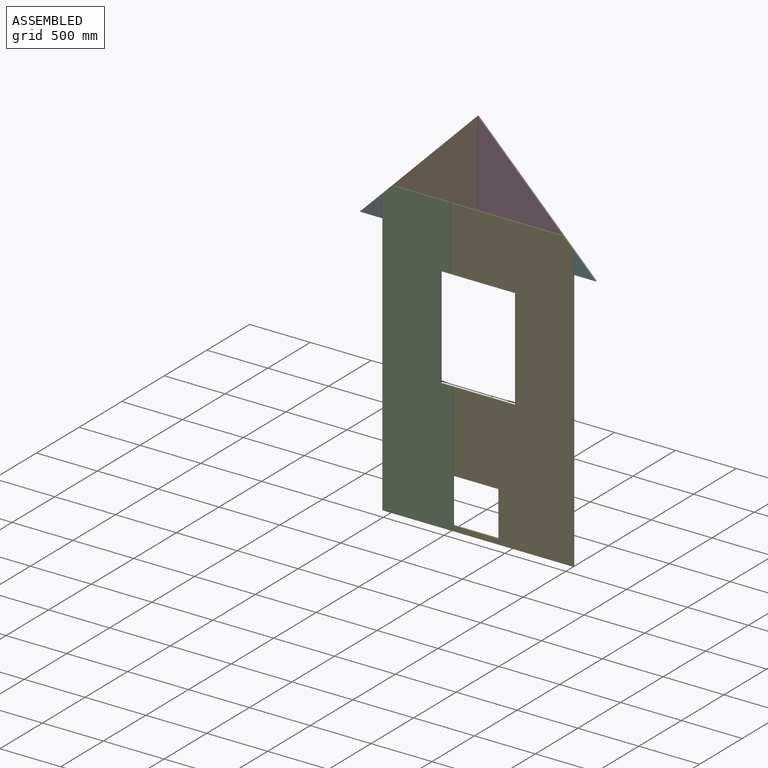
[diagram: assembled view]
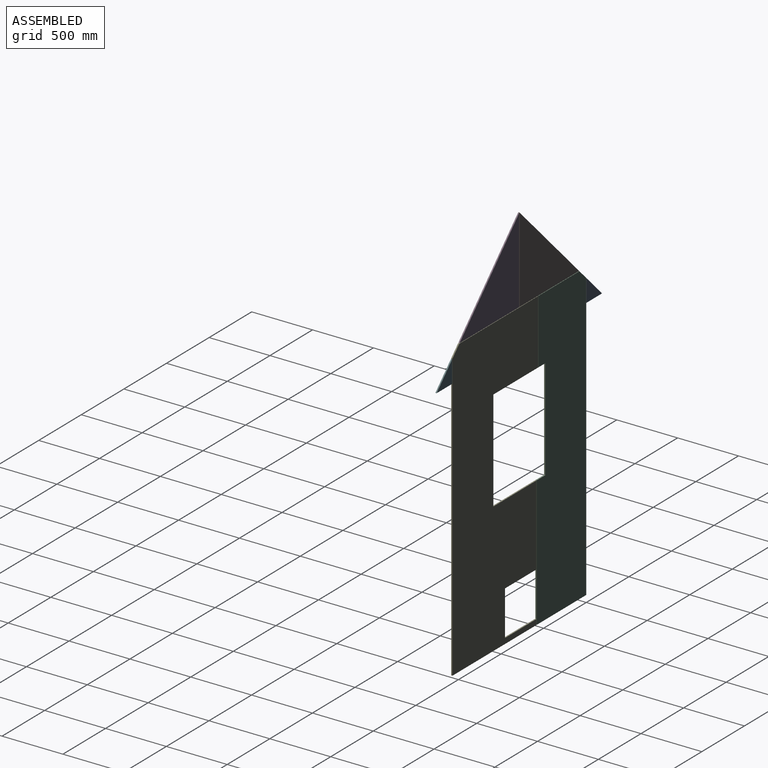
[diagram: assembled view, second angle]
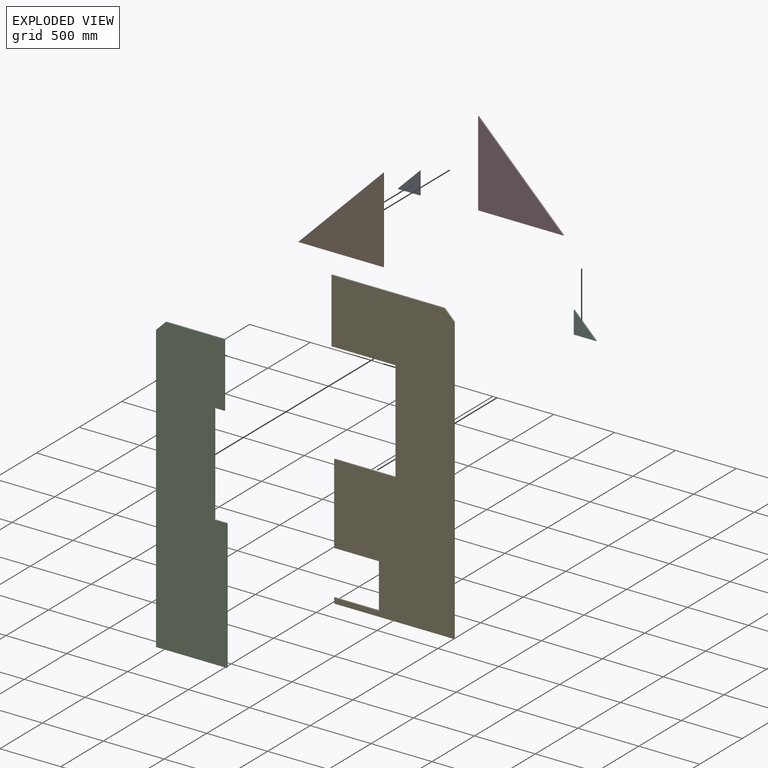
[diagram: exploded view]
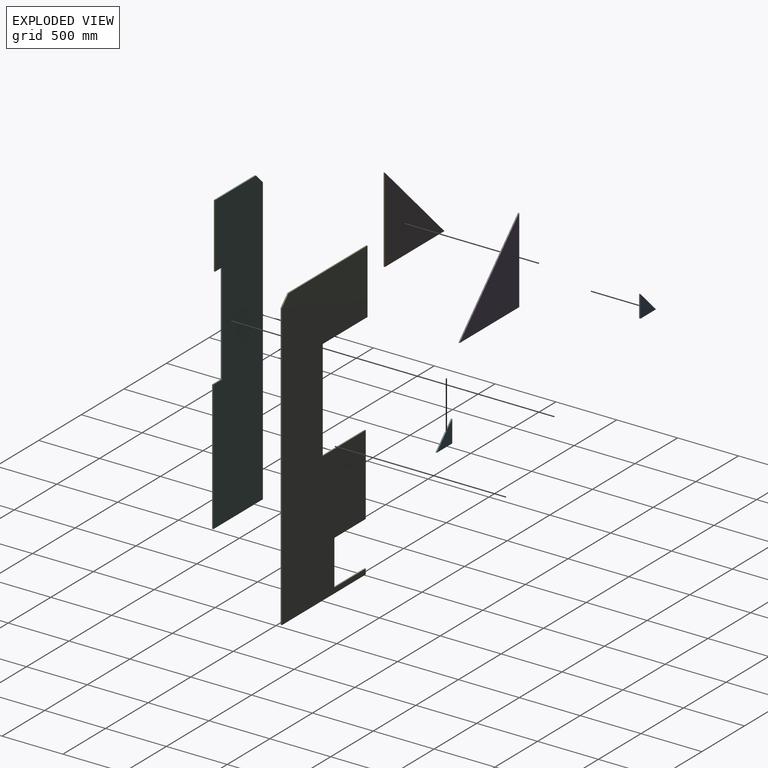
[diagram: exploded view, second angle]
ASSEMBLY  parts=6 mates=5
PART A: 5 faces, bbox 182.9x10.2x182.9 mm
  f0: plane 182.88x182.88mm, normal (0,-1,0), area 16722.5mm2, adj f2,f3,f4
  f1: plane 182.88x182.88mm, normal (0,1,0), area 16722.5mm2, adj f2,f3,f4
  f2: plane 182.88x10.16mm, normal (0,0,1), area 1858.1mm2, adj f0,f1,f3,f4
  f3: plane 182.88x10.16mm, normal (-1,0,0), area 1858.1mm2, adj f0,f1,f2,f4
  f4: plane 182.88x182.88mm, normal (0.71,0,-0.71), area 2627.7mm2, adj f0,f1,f2,f3
PART B: 5 faces, bbox 698.5x10.2x700.1 mm
  f0: plane 700.09x698.5mm, normal (0,1,0), area 244505.6mm2, adj f2,f3,f4
  f1: plane 700.09x698.5mm, normal (0,-1,0), area 244505.6mm2, adj f2,f3,f4
  f2: plane 700.09x10.16mm, normal (-1,0,0), area 7112.9mm2, adj f0,f1,f3,f4
  f3: plane 700.09x698.5mm, normal (0.71,0,0.71), area 10047.7mm2, adj f0,f1,f2,f4
  f4: plane 698.5x10.16mm, normal (0,0,-1), area 7096.8mm2, adj f0,f1,f2,f3
PART C: 11 faces, bbox 581.7x10.2x2435.2 mm
  f0: plane 2435.23x581.67mm, normal (0,-1,0), area 1317817.2mm2, adj f2,f3,f4,f5,f6,f7,f8,f9
  f1: plane 2435.23x581.67mm, normal (0,1,0), area 1317817.2mm2, adj f2,f3,f4,f5,f6,f7,f8,f9
  f2: plane 2355.09x10.16mm, normal (1,0,0), area 23927.7mm2, adj f0,f1,f3,f10
  f3: plane 581.67x10.16mm, normal (0,0,-1), area 5909.8mm2, adj f0,f1,f2,f8
  f4: plane 480.89x10.16mm, normal (0,0,1), area 4885.8mm2, adj f0,f1,f5,f10
  f5: plane 530.23x10.16mm, normal (-1,0,0), area 5387.1mm2, adj f0,f1,f4,f9
  f6: plane 831.85x10.16mm, normal (-1,0,0), area 8451.6mm2, adj f0,f1,f7,f9
  f7: plane 101.61x10.16mm, normal (0,0,1), area 1032.4mm2, adj f0,f1,f6,f8
  f8: plane 1073.15x10.16mm, normal (-1,0,0), area 10903.2mm2, adj f0,f1,f3,f7
  f9: plane 80.96x10.16mm, normal (0,0,-1), area 822.6mm2, adj f0,f1,f5,f6
  f10: plane 80.14x80.14mm, normal (0.71,0,0.71), area 1151.4mm2, adj f0,f1,f2,f4
PART D: 5 faces, bbox 698.5x10.2x700.1 mm
  f0: plane 700.09x698.5mm, normal (0,-1,0), area 244505.6mm2, adj f2,f3,f4
  f1: plane 700.09x698.5mm, normal (0,1,0), area 244505.6mm2, adj f2,f3,f4
  f2: plane 700.09x10.16mm, normal (1,0,0), area 7112.9mm2, adj f0,f1,f3,f4
  f3: plane 700.09x698.5mm, normal (-0.71,0,-0.71), area 10047.7mm2, adj f0,f1,f2,f4
  f4: plane 698.5x10.16mm, normal (0,0,1), area 7096.8mm2, adj f0,f1,f2,f3
PART E: 15 faces, bbox 1005.5x10.2x2435.2 mm
  f0: plane 2435.23x1005.54mm, normal (0,-1,0), area 1850571.3mm2, adj f2,f3,f4,f5,f6,f7,f8,f9
  f1: plane 2435.23x1005.54mm, normal (0,1,0), area 1850571.3mm2, adj f2,f3,f4,f5,f6,f7,f8,f9
  f2: plane 984.89x10.16mm, normal (0,0,-1), area 10006.4mm2, adj f0,f1,f3,f13
  f3: plane 2355.09x10.16mm, normal (-1,0,0), area 23927.7mm2, adj f0,f1,f2,f14
  f4: plane 925.4x10.16mm, normal (0,0,1), area 9402mm2, adj f0,f1,f5,f14
  f5: plane 530.23x10.16mm, normal (1,0,0), area 5387.1mm2, adj f0,f1,f4,f6
  f6: plane 525.48x10.16mm, normal (0,0,-1), area 5338.8mm2, adj f0,f1,f5,f7
  f7: plane 831.85x10.16mm, normal (1,0,0), area 8451.6mm2, adj f0,f1,f6,f8
  f8: plane 504.83x10.16mm, normal (0,0,1), area 5129mm2, adj f0,f1,f7,f9
  f9: plane 660.4x10.16mm, normal (1,0,0), area 6709.7mm2, adj f0,f1,f8,f10
  f10: plane 368.3x10.16mm, normal (0,0,-1), area 3741.9mm2, adj f0,f1,f9,f11
  f11: plane 368.3x10.16mm, normal (1,0,0), area 3741.9mm2, adj f0,f1,f10,f12
  f12: plane 368.3x10.16mm, normal (0,0,1), area 3741.9mm2, adj f0,f1,f11,f13
  f13: plane 44.45x10.16mm, normal (1,0,0), area 451.6mm2, adj f0,f1,f2,f12
  f14: plane 80.14x80.14mm, normal (-0.71,0,0.71), area 1151.4mm2, adj f0,f1,f3,f4
PART F: 5 faces, bbox 182.9x10.2x182.9 mm
  f0: plane 182.88x182.88mm, normal (0,1,0), area 16722.5mm2, adj f1,f3,f4
  f1: plane 182.88x10.16mm, normal (1,0,0), area 1858.1mm2, adj f0,f2,f3,f4
  f2: plane 182.88x182.88mm, normal (0,-1,0), area 16722.5mm2, adj f1,f3,f4
  f3: plane 182.88x10.16mm, normal (0,0,-1), area 1858.1mm2, adj f0,f1,f2,f4
  f4: plane 182.88x182.88mm, normal (-0.71,0,0.71), area 2627.7mm2, adj f0,f1,f2,f3
PLACE A rot(axis=(0,1,0),180deg) t=(551.17,0,1897.25)mm
PLACE B rot(axis=(0,0,1),180deg) t=(-1912.5,-10.16,4158.2)mm
PLACE C rot(axis=(0,0,1),180deg) t=(-687.72,-10.16,2435.23)mm
PLACE D rot(axis=(0.71,0,-0.71),180deg) t=(-224.39,-10.16,442.58)mm
PLACE E rot(axis=(0,0,1),180deg) t=(1090.93,-10.16,2511.43)mm
PLACE F rot(axis=(0,1,0),90deg) t=(2033.92,0,2906.26)mm
MATE fastened C.f1 <-> E.f1  axis (0,-1,0) through (561.02,-10.16,2435.23)mm
MATE fastened D.f1 <-> E.f1  axis (0,-1,0) through (1486.42,-10.16,2438.4)mm
MATE fastened C.f1 <-> B.f0  axis (0,-1,0) through (80.14,-10.16,2435.23)mm
MATE fastened F.f2 <-> E.f1  axis (0,-1,0) through (1572.91,-10.16,2351.91)mm
MATE fastened A.f0 <-> C.f1  axis (0,-1,0) through (-3.18,-10.16,2351.91)mm
